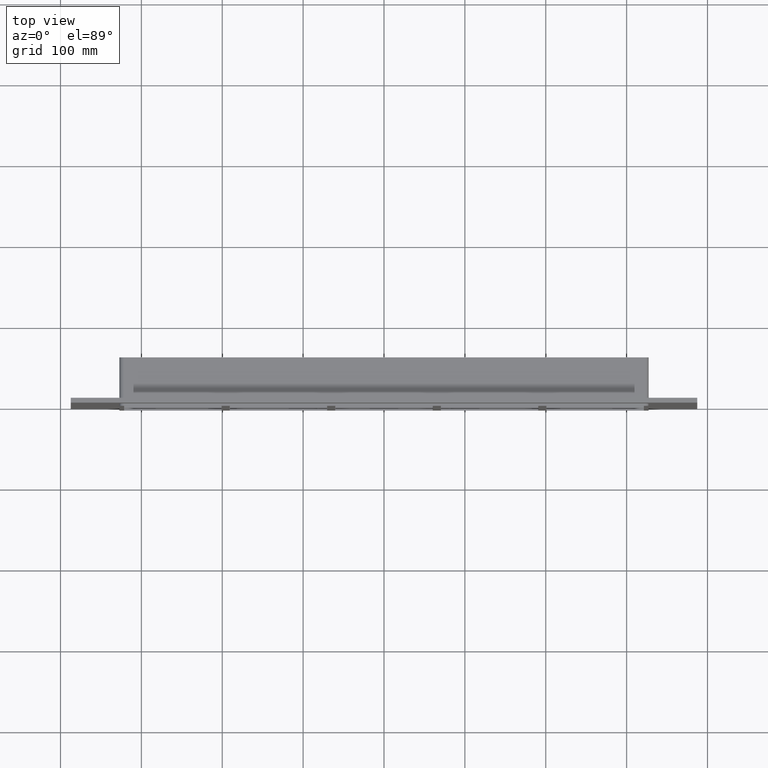
[diagram: clean part render]
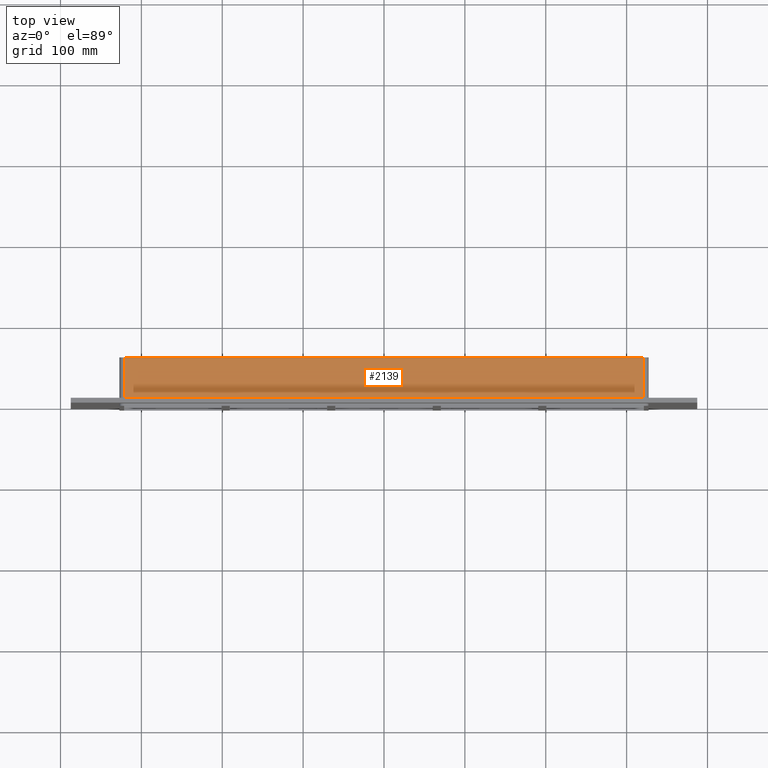
[diagram: same view with one face highlighted and labeled with its STEP entity id]
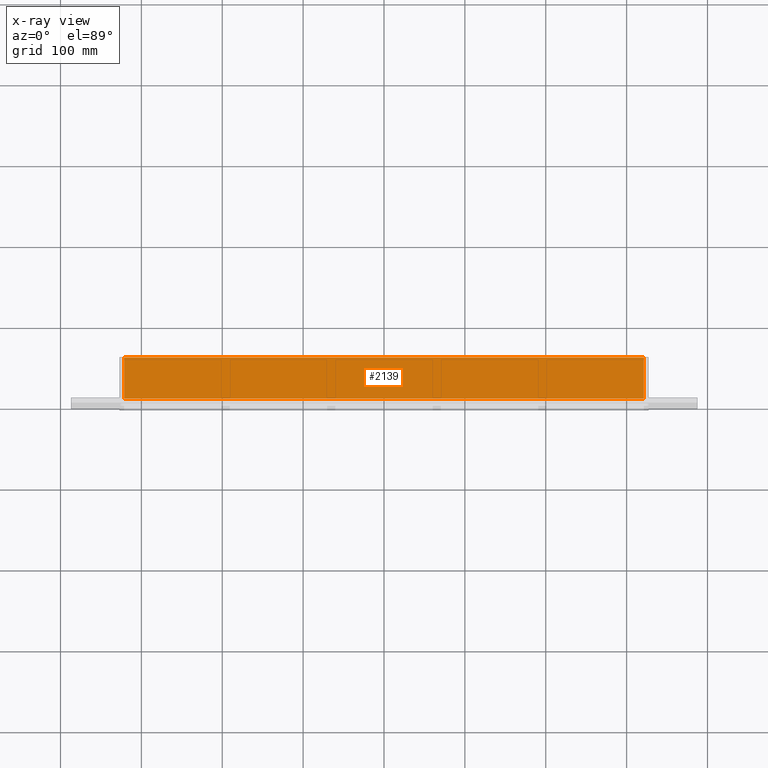
[diagram: x-ray of the same camera — body ghosted, the highlighted face saturated]
A machine part, top view. The second image highlights one B-rep face of the part: STEP entity #2139.
The next image is the same camera in x-ray: the body ghosted, the highlighted face saturated — about 0% of this face is hidden behind the body in this view.
In plain terms, the highlighted planar face has unit normal (0, 0, 1).
Its self-contained STEP definition (entity closure, byte-faithful):
#1044=CARTESIAN_POINT('',(-321.25,57.0,171.50000000000003));
#1045=VERTEX_POINT('',#1044);
#1053=CARTESIAN_POINT('',(321.24999999999994,57.0,171.50000000000003));
#1054=VERTEX_POINT('',#1053);
#1055=CARTESIAN_POINT('',(-321.25,57.0,171.50000000000003));
#1056=DIRECTION('',(1.0,0.0,0.0));
#1057=VECTOR('',#1056,642.5);
#1058=LINE('',#1055,#1057);
#1059=EDGE_CURVE('',#1045,#1054,#1058,.T.);
#1643=CARTESIAN_POINT('',(321.25,6.000000000000001,171.50000000000003));
#1644=VERTEX_POINT('',#1643);
#1652=CARTESIAN_POINT('',(-321.25,6.000000000000001,171.50000000000003));
#1653=VERTEX_POINT('',#1652);
#1654=CARTESIAN_POINT('',(-321.25,6.000000000000001,171.50000000000003));
#1655=DIRECTION('',(1.0,0.0,0.0));
#1656=VECTOR('',#1655,642.5);
#1657=LINE('',#1654,#1656);
#1658=EDGE_CURVE('',#1653,#1644,#1657,.T.);
#1903=CARTESIAN_POINT('',(321.25,57.0,171.50000000000003));
#1904=DIRECTION('',(0.0,-1.0,0.0));
#1905=VECTOR('',#1904,51.0);
#1906=LINE('',#1903,#1905);
#1907=EDGE_CURVE('',#1054,#1644,#1906,.T.);
#2117=CARTESIAN_POINT('',(-321.25,6.000000000000001,171.50000000000003));
#2118=DIRECTION('',(0.0,1.0,0.0));
#2119=VECTOR('',#2118,51.0);
#2120=LINE('',#2117,#2119);
#2121=EDGE_CURVE('',#1653,#1045,#2120,.T.);
#2128=CARTESIAN_POINT('',(-327.25,0.0,171.50000000000003));
#2129=DIRECTION('',(0.0,0.0,1.0));
#2130=DIRECTION('',(1.0,0.0,0.0));
#2131=AXIS2_PLACEMENT_3D('',#2128,#2129,#2130);
#2132=PLANE('',#2131);
#2133=ORIENTED_EDGE('',*,*,#1658,.T.);
#2134=ORIENTED_EDGE('',*,*,#1907,.F.);
#2135=ORIENTED_EDGE('',*,*,#1059,.F.);
#2136=ORIENTED_EDGE('',*,*,#2121,.F.);
#2137=EDGE_LOOP('',(#2133,#2134,#2135,#2136));
#2138=FACE_OUTER_BOUND('',#2137,.T.);
#2139=ADVANCED_FACE('',(#2138),#2132,.T.);